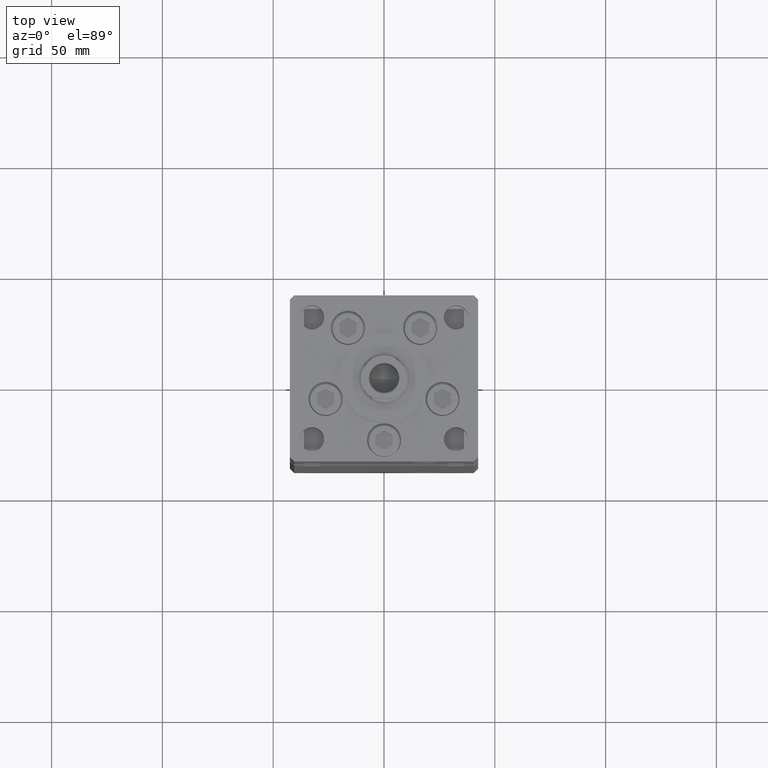
[diagram: clean part render]
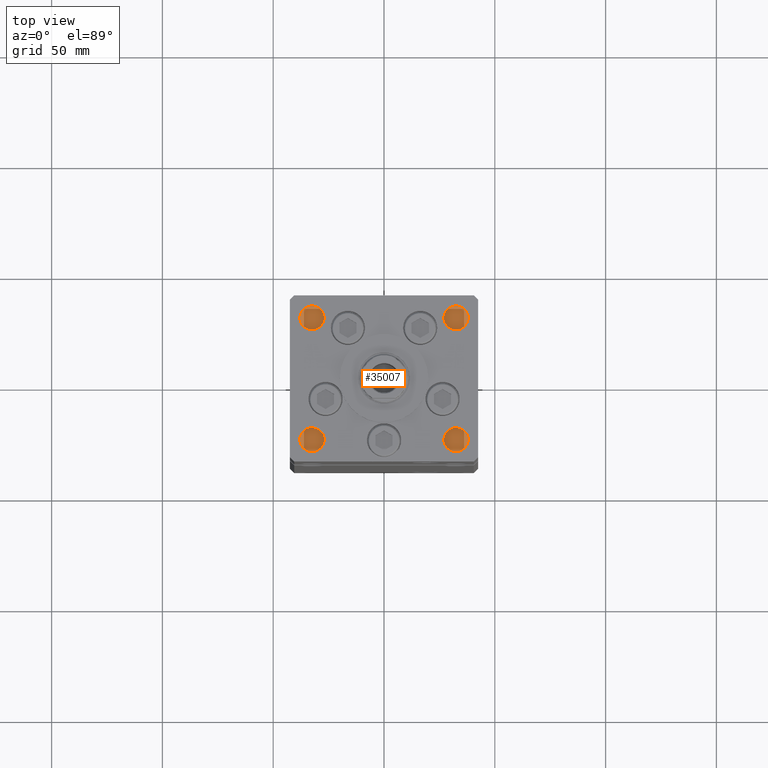
[diagram: same view with one face highlighted and labeled with its STEP entity id]
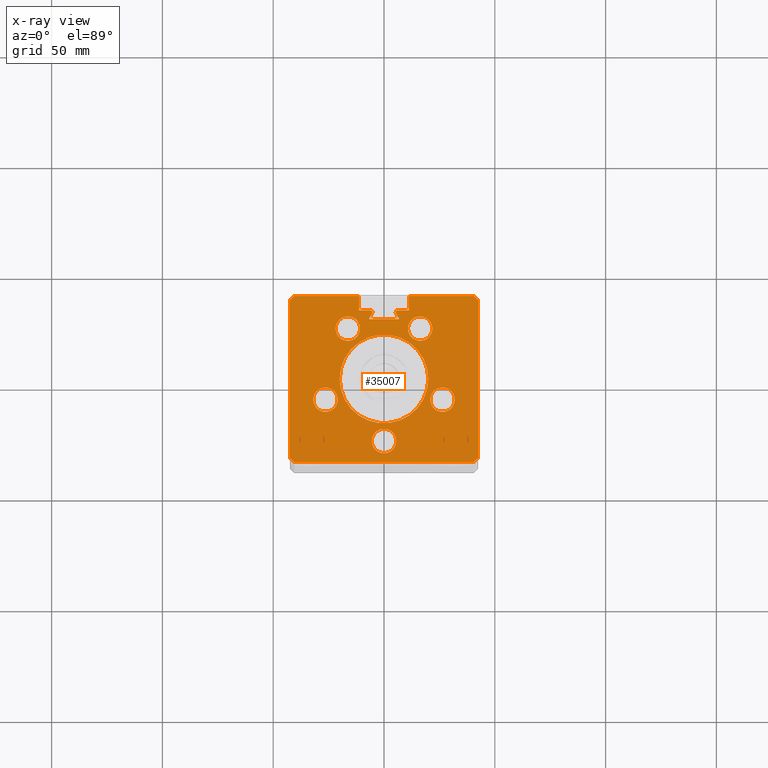
[diagram: x-ray of the same camera — body ghosted, the highlighted face saturated]
A machine part, top view. The second image highlights one B-rep face of the part: STEP entity #35007.
The next image is the same camera in x-ray: the body ghosted, the highlighted face saturated — about 0% of this face is hidden behind the body in this view.
In plain terms, the highlighted planar face has unit normal (0, 0, -1).
Its self-contained STEP definition (entity closure, byte-faithful):
#11 = VERTEX_POINT ( 'NONE', #52003 ) ;
#24 = ORIENTED_EDGE ( 'NONE', *, *, #44833, .F. ) ;
#211 = CARTESIAN_POINT ( 'NONE',  ( 0.000000000000000000, 31.00000000000000000, 268.5000000000000000 ) ) ;
#219 = VERTEX_POINT ( 'NONE', #23107 ) ;
#360 = VERTEX_POINT ( 'NONE', #35842 ) ;
#423 = AXIS2_PLACEMENT_3D ( 'NONE', #36058, #8341, #24205 ) ;
#670 = EDGE_CURVE ( 'NONE', #48857, #19321, #27626, .T. ) ;
#912 = CIRCLE ( 'NONE', #16365, 0.9333333333340008142 ) ;
#954 = VERTEX_POINT ( 'NONE', #27288 ) ;
#988 = CARTESIAN_POINT ( 'NONE',  ( -16.84845819336020867, 9.727461873366657130, 268.5000000000000000 ) ) ;
#1003 = AXIS2_PLACEMENT_3D ( 'NONE', #35841, #27487, #15388 ) ;
#2080 = ORIENTED_EDGE ( 'NONE', *, *, #19360, .F. ) ;
#2169 = CARTESIAN_POINT ( 'NONE',  ( 40.50000000000000711, 37.50000000000000000, 268.5000000000000000 ) ) ;
#2700 = DIRECTION ( 'NONE',  ( 0.000000000000000000, 0.000000000000000000, 1.000000000000000000 ) ) ;
#2738 = CARTESIAN_POINT ( 'NONE',  ( -11.24999999999999822, 37.50000000000000000, 268.5000000000000000 ) ) ;
#2826 = EDGE_LOOP ( 'NONE', ( #32112, #38444, #24, #29236, #51845, #38927, #4775, #24495, #21492, #50222, #29481, #31459, #50769, #3268, #25080, #28165, #51023, #46271, #44888 ) ) ;
#3024 = VERTEX_POINT ( 'NONE', #32644 ) ;
#3030 = CARTESIAN_POINT ( 'NONE',  ( -42.49999999999998579, -35.50000000000000711, 268.5000000000000000 ) ) ;
#3143 = ORIENTED_EDGE ( 'NONE', *, *, #50724, .F. ) ;
#3268 = ORIENTED_EDGE ( 'NONE', *, *, #40982, .F. ) ;
#3567 = AXIS2_PLACEMENT_3D ( 'NONE', #48556, #44241, #43709 ) ;
#3628 = EDGE_CURVE ( 'NONE', #32917, #23362, #25892, .T. ) ;
#4083 = CARTESIAN_POINT ( 'NONE',  ( 11.24999999999999112, 37.50000000000000000, 268.5000000000000000 ) ) ;
#4141 = DIRECTION ( 'NONE',  ( 0.4999999999999993894, -0.8660254037844390407, 0.000000000000000000 ) ) ;
#4756 = VERTEX_POINT ( 'NONE', #40346 ) ;
#4775 = ORIENTED_EDGE ( 'NONE', *, *, #10257, .T. ) ;
#5126 = DIRECTION ( 'NONE',  ( 0.000000000000000000, 0.000000000000000000, 1.000000000000000000 ) ) ;
#5132 = CARTESIAN_POINT ( 'NONE',  ( -42.50000000000001421, 35.50000000000000711, 268.5000000000000000 ) ) ;
#5204 = VERTEX_POINT ( 'NONE', #41601 ) ;
#5250 = VECTOR ( 'NONE', #7067, 1000.000000000000114 ) ;
#5476 = ORIENTED_EDGE ( 'NONE', *, *, #47572, .F. ) ;
#5698 = LINE ( 'NONE', #14286, #5935 ) ;
#5935 = VECTOR ( 'NONE', #14022, 1000.000000000000000 ) ;
#5988 = EDGE_CURVE ( 'NONE', #14555, #31026, #43330, .T. ) ;
#6146 = EDGE_CURVE ( 'NONE', #5204, #39005, #15895, .T. ) ;
#6228 = DIRECTION ( 'NONE',  ( 0.000000000000000000, 0.000000000000000000, 1.000000000000000000 ) ) ;
#6377 = CARTESIAN_POINT ( 'NONE',  ( -20.00000000000000000, 0.000000000000000000, 268.5000000000000000 ) ) ;
#7067 = DIRECTION ( 'NONE',  ( 0.7071067811865474617, -0.7071067811865474617, 0.000000000000000000 ) ) ;
#7272 = CARTESIAN_POINT ( 'NONE',  ( -6.183333333333997928, 30.06666666666599852, 268.5000000000000000 ) ) ;
#7332 = LINE ( 'NONE', #3030, #5250 ) ;
#7750 = EDGE_CURVE ( 'NONE', #12747, #48857, #27739, .T. ) ;
#8341 = DIRECTION ( 'NONE',  ( -0.000000000000000000, 0.000000000000000000, 1.000000000000000000 ) ) ;
#8493 = DIRECTION ( 'NONE',  ( 1.000000000000000000, 0.000000000000000000, 0.000000000000000000 ) ) ;
#8704 = AXIS2_PLACEMENT_3D ( 'NONE', #46280, #5126, #46016 ) ;
#8764 = DIRECTION ( 'NONE',  ( 0.000000000000000000, 0.000000000000000000, 1.000000000000000000 ) ) ;
#9206 = DIRECTION ( 'NONE',  ( -3.909236002201255146E-16, -1.000000000000000000, 0.000000000000000000 ) ) ;
#9543 = VERTEX_POINT ( 'NONE', #13922 ) ;
#9601 = EDGE_CURVE ( 'NONE', #31026, #14555, #12504, .T. ) ;
#9628 = DIRECTION ( 'NONE',  ( 1.000000000000000000, 0.000000000000000000, 0.000000000000000000 ) ) ;
#9887 = DIRECTION ( 'NONE',  ( 0.000000000000000000, 0.000000000000000000, 1.000000000000000000 ) ) ;
#9947 = FACE_BOUND ( 'NONE', #19476, .T. ) ;
#10257 = EDGE_CURVE ( 'NONE', #46793, #4756, #43857, .T. ) ;
#10308 = AXIS2_PLACEMENT_3D ( 'NONE', #36609, #12118, #27738 ) ;
#10386 = VERTEX_POINT ( 'NONE', #28991 ) ;
#11191 = CARTESIAN_POINT ( 'NONE',  ( 31.89865316429776954, -9.333333333333339255, 268.5000000000000000 ) ) ;
#12118 = DIRECTION ( 'NONE',  ( 0.000000000000000000, 0.000000000000000000, 1.000000000000000000 ) ) ;
#12504 = CIRCLE ( 'NONE', #31448, 5.499999999999998224 ) ;
#12652 = CARTESIAN_POINT ( 'NONE',  ( -11.24999999999999822, 37.50000000000000000, 268.5000000000000000 ) ) ;
#12747 = VERTEX_POINT ( 'NONE', #31046 ) ;
#12960 = VERTEX_POINT ( 'NONE', #52776 ) ;
#13151 = CARTESIAN_POINT ( 'NONE',  ( -11.24999999999999822, 31.00000000000000000, 268.5000000000000000 ) ) ;
#13429 = EDGE_CURVE ( 'NONE', #11, #17381, #50508, .T. ) ;
#13501 = CARTESIAN_POINT ( 'NONE',  ( 42.50000000000001421, 35.50000000000000711, 268.5000000000000000 ) ) ;
#13702 = EDGE_CURVE ( 'NONE', #38923, #360, #23716, .T. ) ;
#13705 = FACE_BOUND ( 'NONE', #28266, .T. ) ;
#13922 = CARTESIAN_POINT ( 'NONE',  ( 5.375042956467946276, 29.59999999999899600, 268.5000000000000000 ) ) ;
#14022 = DIRECTION ( 'NONE',  ( -0.000000000000000000, -1.000000000000000000, 0.000000000000000000 ) ) ;
#14200 = EDGE_CURVE ( 'NONE', #9543, #11, #44772, .T. ) ;
#14286 = CARTESIAN_POINT ( 'NONE',  ( 11.24999999999999822, 0.000000000000000000, 268.5000000000000000 ) ) ;
#14549 = LINE ( 'NONE', #2738, #15615 ) ;
#14555 = VERTEX_POINT ( 'NONE', #29595 ) ;
#15334 = EDGE_CURVE ( 'NONE', #26100, #10386, #21165, .T. ) ;
#15388 = DIRECTION ( 'NONE',  ( 1.000000000000000000, 0.000000000000000000, 0.000000000000000000 ) ) ;
#15615 = VECTOR ( 'NONE', #35273, 1000.000000000000000 ) ;
#15895 = CIRCLE ( 'NONE', #423, 20.00000000000000000 ) ;
#15937 = EDGE_LOOP ( 'NONE', ( #38521, #5476 ) ) ;
#15963 = VECTOR ( 'NONE', #49990, 1000.000000000000000 ) ;
#16017 = VERTEX_POINT ( 'NONE', #34043 ) ;
#16365 = AXIS2_PLACEMENT_3D ( 'NONE', #35795, #23411, #40092 ) ;
#16595 = DIRECTION ( 'NONE',  ( -1.000000000000000000, 0.000000000000000000, 0.000000000000000000 ) ) ;
#16823 = VECTOR ( 'NONE', #4141, 999.9999999999998863 ) ;
#16842 = ORIENTED_EDGE ( 'NONE', *, *, #13702, .F. ) ;
#17381 = VERTEX_POINT ( 'NONE', #52850 ) ;
#17438 = CIRCLE ( 'NONE', #46668, 0.9333333333340008142 ) ;
#17664 = CARTESIAN_POINT ( 'NONE',  ( 0.000000000000000000, 0.000000000000000000, 268.5000000000000000 ) ) ;
#17765 = EDGE_CURVE ( 'NONE', #219, #16017, #25027, .T. ) ;
#17807 = VERTEX_POINT ( 'NONE', #4083 ) ;
#17938 = ORIENTED_EDGE ( 'NONE', *, *, #39712, .F. ) ;
#18044 = VECTOR ( 'NONE', #26332, 1000.000000000000000 ) ;
#18128 = AXIS2_PLACEMENT_3D ( 'NONE', #31545, #47967, #27499 ) ;
#18139 = VERTEX_POINT ( 'NONE', #33834 ) ;
#18539 = EDGE_LOOP ( 'NONE', ( #53103, #2080 ) ) ;
#18540 = CARTESIAN_POINT ( 'NONE',  ( -11.24999999999999822, 37.50000000000000000, 268.5000000000000000 ) ) ;
#18604 = CARTESIAN_POINT ( 'NONE',  ( 0.000000000000000000, 31.00000000000000000, 268.5000000000000000 ) ) ;
#19236 = CARTESIAN_POINT ( 'NONE',  ( -5.249999999999996447, 30.06666666666599852, 268.5000000000000000 ) ) ;
#19321 = VERTEX_POINT ( 'NONE', #12652 ) ;
#19360 = EDGE_CURVE ( 'NONE', #28718, #44992, #28990, .T. ) ;
#19476 = EDGE_LOOP ( 'NONE', ( #40892, #47947 ) ) ;
#19917 = VERTEX_POINT ( 'NONE', #27870 ) ;
#20106 = AXIS2_PLACEMENT_3D ( 'NONE', #47917, #6228, #22617 ) ;
#20635 = ORIENTED_EDGE ( 'NONE', *, *, #5988, .F. ) ;
#21165 = CIRCLE ( 'NONE', #51265, 5.500000000000000000 ) ;
#21492 = ORIENTED_EDGE ( 'NONE', *, *, #33808, .F. ) ;
#22420 = CARTESIAN_POINT ( 'NONE',  ( -16.32291334290543361, 22.74999999999999645, 268.5000000000000000 ) ) ;
#22617 = DIRECTION ( 'NONE',  ( 1.000000000000000000, 0.000000000000000000, 0.000000000000000000 ) ) ;
#23107 = CARTESIAN_POINT ( 'NONE',  ( -42.50000000000001421, 35.50000000000000711, 268.5000000000000000 ) ) ;
#23194 = EDGE_CURVE ( 'NONE', #17807, #12960, #5698, .T. ) ;
#23362 = VERTEX_POINT ( 'NONE', #23942 ) ;
#23411 = DIRECTION ( 'NONE',  ( 0.000000000000000000, 0.000000000000000000, -1.000000000000000000 ) ) ;
#23651 = DIRECTION ( 'NONE',  ( 1.000000000000000000, 0.000000000000000000, 0.000000000000000000 ) ) ;
#23716 = CIRCLE ( 'NONE', #28848, 5.499999999999998224 ) ;
#23942 = CARTESIAN_POINT ( 'NONE',  ( -5.375042956467946276, 29.59999999999899600, 268.4999999999999432 ) ) ;
#24044 = CIRCLE ( 'NONE', #10308, 5.499999999999998224 ) ;
#24205 = DIRECTION ( 'NONE',  ( 1.000000000000000000, 0.000000000000000000, 0.000000000000000000 ) ) ;
#24268 = CARTESIAN_POINT ( 'NONE',  ( 42.49999999999998579, -35.50000000000000711, 268.5000000000000000 ) ) ;
#24463 = EDGE_LOOP ( 'NONE', ( #16842, #17938 ) ) ;
#24495 = ORIENTED_EDGE ( 'NONE', *, *, #24920, .F. ) ;
#24508 = DIRECTION ( 'NONE',  ( 0.000000000000000000, 0.000000000000000000, 1.000000000000000000 ) ) ;
#24696 = DIRECTION ( 'NONE',  ( 1.000000000000000000, 0.000000000000000000, 0.000000000000000000 ) ) ;
#24899 = DIRECTION ( 'NONE',  ( 0.4999999999999993894, 0.8660254037844390407, 0.000000000000000000 ) ) ;
#24920 = EDGE_CURVE ( 'NONE', #51093, #4756, #52019, .T. ) ;
#25027 = LINE ( 'NONE', #5132, #38415 ) ;
#25080 = ORIENTED_EDGE ( 'NONE', *, *, #14200, .T. ) ;
#25892 = CIRCLE ( 'NONE', #1003, 0.9333333333340008142 ) ;
#26100 = VERTEX_POINT ( 'NONE', #28044 ) ;
#26120 = LINE ( 'NONE', #13501, #39650 ) ;
#26332 = DIRECTION ( 'NONE',  ( 1.000000000000000000, 0.000000000000000000, 0.000000000000000000 ) ) ;
#26826 = EDGE_CURVE ( 'NONE', #12960, #18139, #41878, .T. ) ;
#26883 = DIRECTION ( 'NONE',  ( 1.000000000000000000, 0.000000000000000000, 0.000000000000000000 ) ) ;
#27288 = CARTESIAN_POINT ( 'NONE',  ( -5.499999999999998224, -28.00000000000000000, 268.5000000000000000 ) ) ;
#27362 = CARTESIAN_POINT ( 'NONE',  ( 5.500000000000001776, -28.00000000000000000, 268.5000000000000000 ) ) ;
#27487 = DIRECTION ( 'NONE',  ( 0.000000000000000000, 0.000000000000000000, -1.000000000000000000 ) ) ;
#27499 = DIRECTION ( 'NONE',  ( 1.000000000000000000, 0.000000000000000000, 0.000000000000000000 ) ) ;
#27626 = LINE ( 'NONE', #52128, #51586 ) ;
#27738 = DIRECTION ( 'NONE',  ( 1.000000000000000000, 0.000000000000000000, 0.000000000000000000 ) ) ;
#27739 = LINE ( 'NONE', #18604, #32251 ) ;
#27820 = CARTESIAN_POINT ( 'NONE',  ( -16.32291334290543361, 22.74999999999999645, 268.5000000000000000 ) ) ;
#27870 = CARTESIAN_POINT ( 'NONE',  ( 42.50000000000001421, 35.50000000000000711, 268.5000000000000000 ) ) ;
#28044 = CARTESIAN_POINT ( 'NONE',  ( -10.82291334290543539, 22.74999999999999645, 268.5000000000000000 ) ) ;
#28165 = ORIENTED_EDGE ( 'NONE', *, *, #13429, .T. ) ;
#28266 = EDGE_LOOP ( 'NONE', ( #3143, #52948 ) ) ;
#28718 = VERTEX_POINT ( 'NONE', #51695 ) ;
#28848 = AXIS2_PLACEMENT_3D ( 'NONE', #45342, #8764, #8493 ) ;
#28990 = CIRCLE ( 'NONE', #34144, 5.499999999999998224 ) ;
#28991 = CARTESIAN_POINT ( 'NONE',  ( -21.82291334290543361, 22.74999999999999645, 268.5000000000000000 ) ) ;
#29236 = ORIENTED_EDGE ( 'NONE', *, *, #36327, .T. ) ;
#29481 = ORIENTED_EDGE ( 'NONE', *, *, #49403, .F. ) ;
#29595 = CARTESIAN_POINT ( 'NONE',  ( 21.82291334290543361, 22.75000000000000000, 268.5000000000000000 ) ) ;
#30108 = DIRECTION ( 'NONE',  ( 0.000000000000000000, 0.000000000000000000, -1.000000000000000000 ) ) ;
#30259 = VECTOR ( 'NONE', #49118, 1000.000000000000114 ) ;
#30887 = VECTOR ( 'NONE', #40158, 1000.000000000000114 ) ;
#31026 = VERTEX_POINT ( 'NONE', #52385 ) ;
#31046 = CARTESIAN_POINT ( 'NONE',  ( -6.183333333333997928, 31.00000000000000000, 268.5000000000000000 ) ) ;
#31199 = DIRECTION ( 'NONE',  ( 0.7071067811865500152, -0.7071067811865451302, 0.000000000000000000 ) ) ;
#31448 = AXIS2_PLACEMENT_3D ( 'NONE', #46474, #9887, #9628 ) ;
#31459 = ORIENTED_EDGE ( 'NONE', *, *, #23194, .T. ) ;
#31521 = CARTESIAN_POINT ( 'NONE',  ( 42.49999999999998579, -35.50000000000000711, 268.5000000000000000 ) ) ;
#31545 = CARTESIAN_POINT ( 'NONE',  ( -26.39865316429776954, -9.333333333333342807, 268.5000000000000000 ) ) ;
#31814 = VECTOR ( 'NONE', #16595, 1000.000000000000000 ) ;
#31881 = CIRCLE ( 'NONE', #37914, 5.500000000000000000 ) ;
#32112 = ORIENTED_EDGE ( 'NONE', *, *, #7750, .T. ) ;
#32251 = VECTOR ( 'NONE', #48480, 1000.000000000000000 ) ;
#32644 = CARTESIAN_POINT ( 'NONE',  ( -40.50000000000000711, 37.50000000000000000, 268.5000000000000000 ) ) ;
#32724 = CIRCLE ( 'NONE', #8704, 5.500000000000000000 ) ;
#32917 = VERTEX_POINT ( 'NONE', #19236 ) ;
#32990 = CARTESIAN_POINT ( 'NONE',  ( -20.89865316429777309, -9.333333333333342807, 268.5000000000000000 ) ) ;
#33538 = EDGE_CURVE ( 'NONE', #10386, #26100, #31881, .T. ) ;
#33549 = CARTESIAN_POINT ( 'NONE',  ( 0.000000000000000000, 26.99999999999986855, 268.5000000000000000 ) ) ;
#33808 = EDGE_CURVE ( 'NONE', #19917, #51093, #26120, .T. ) ;
#33834 = CARTESIAN_POINT ( 'NONE',  ( 6.183333333333997928, 31.00000000000000000, 268.5000000000000000 ) ) ;
#34043 = CARTESIAN_POINT ( 'NONE',  ( -42.49999999999998579, -35.50000000000000711, 268.5000000000000000 ) ) ;
#34144 = AXIS2_PLACEMENT_3D ( 'NONE', #51926, #2700, #26883 ) ;
#34340 = DIRECTION ( 'NONE',  ( 1.000000000000000000, 0.000000000000000000, 0.000000000000000000 ) ) ;
#34414 = DIRECTION ( 'NONE',  ( -1.000000000000000000, 0.000000000000000000, -0.000000000000000000 ) ) ;
#34797 = DIRECTION ( 'NONE',  ( 1.000000000000000000, 0.000000000000000000, 0.000000000000000000 ) ) ;
#35007 = ADVANCED_FACE ( 'NONE', ( #38454, #46265, #39000, #38194, #9947, #37931, #13705 ), #42233, .F. ) ;
#35273 = DIRECTION ( 'NONE',  ( 1.000000000000000000, 0.000000000000000000, 0.000000000000000000 ) ) ;
#35795 = CARTESIAN_POINT ( 'NONE',  ( 6.183333333333997928, 30.06666666666599852, 268.5000000000000000 ) ) ;
#35841 = CARTESIAN_POINT ( 'NONE',  ( -6.183333333333997928, 30.06666666666599852, 268.5000000000000000 ) ) ;
#35842 = CARTESIAN_POINT ( 'NONE',  ( 20.89865316429777309, -9.333333333333339255, 268.5000000000000000 ) ) ;
#36058 = CARTESIAN_POINT ( 'NONE',  ( 0.000000000000000000, 0.000000000000000000, 268.5000000000000000 ) ) ;
#36277 = CIRCLE ( 'NONE', #42296, 20.00000000000000000 ) ;
#36327 = EDGE_CURVE ( 'NONE', #3024, #219, #36462, .T. ) ;
#36462 = LINE ( 'NONE', #48850, #30259 ) ;
#36609 = CARTESIAN_POINT ( 'NONE',  ( 26.39865316429776954, -9.333333333333339255, 268.5000000000000000 ) ) ;
#37006 = EDGE_LOOP ( 'NONE', ( #20635, #37415 ) ) ;
#37415 = ORIENTED_EDGE ( 'NONE', *, *, #9601, .F. ) ;
#37914 = AXIS2_PLACEMENT_3D ( 'NONE', #22420, #50961, #34797 ) ;
#37931 = FACE_OUTER_BOUND ( 'NONE', #2826, .T. ) ;
#38194 = FACE_BOUND ( 'NONE', #37006, .T. ) ;
#38383 = DIRECTION ( 'NONE',  ( -0.000000000000000000, 0.000000000000000000, 1.000000000000000000 ) ) ;
#38415 = VECTOR ( 'NONE', #50079, 1000.000000000000000 ) ;
#38444 = ORIENTED_EDGE ( 'NONE', *, *, #670, .T. ) ;
#38454 = FACE_BOUND ( 'NONE', #18539, .T. ) ;
#38521 = ORIENTED_EDGE ( 'NONE', *, *, #47214, .F. ) ;
#38923 = VERTEX_POINT ( 'NONE', #11191 ) ;
#38927 = ORIENTED_EDGE ( 'NONE', *, *, #47036, .T. ) ;
#38995 = LINE ( 'NONE', #18540, #18044 ) ;
#39000 = FACE_BOUND ( 'NONE', #24463, .T. ) ;
#39005 = VERTEX_POINT ( 'NONE', #6377 ) ;
#39520 = CARTESIAN_POINT ( 'NONE',  ( 40.50000000000000711, 37.50000000000000000, 268.5000000000000000 ) ) ;
#39650 = VECTOR ( 'NONE', #9206, 1000.000000000000000 ) ;
#39712 = EDGE_CURVE ( 'NONE', #360, #38923, #24044, .T. ) ;
#40092 = DIRECTION ( 'NONE',  ( 1.000000000000000000, 0.000000000000000000, 0.000000000000000000 ) ) ;
#40158 = DIRECTION ( 'NONE',  ( -0.7071067811865474617, -0.7071067811865474617, 0.000000000000000000 ) ) ;
#40346 = CARTESIAN_POINT ( 'NONE',  ( 40.49999999999998579, -37.50000000000000711, 268.5000000000000000 ) ) ;
#40461 = VERTEX_POINT ( 'NONE', #27362 ) ;
#40892 = ORIENTED_EDGE ( 'NONE', *, *, #15334, .F. ) ;
#40937 = DIRECTION ( 'NONE',  ( 1.000000000000000000, 0.000000000000000000, 0.000000000000000000 ) ) ;
#40982 = EDGE_CURVE ( 'NONE', #9543, #18139, #912, .T. ) ;
#41601 = CARTESIAN_POINT ( 'NONE',  ( 20.00000000000000000, 2.449293598294706513E-15, 268.5000000000000000 ) ) ;
#41878 = LINE ( 'NONE', #211, #31814 ) ;
#42233 = PLANE ( 'NONE',  #49989 ) ;
#42296 = AXIS2_PLACEMENT_3D ( 'NONE', #17664, #38383, #34340 ) ;
#43330 = CIRCLE ( 'NONE', #20106, 5.499999999999998224 ) ;
#43709 = DIRECTION ( 'NONE',  ( 1.000000000000000000, 0.000000000000000000, 0.000000000000000000 ) ) ;
#43857 = LINE ( 'NONE', #52197, #52075 ) ;
#43928 = CIRCLE ( 'NONE', #18128, 5.499999999999998224 ) ;
#44241 = DIRECTION ( 'NONE',  ( 0.000000000000000000, 0.000000000000000000, 1.000000000000000000 ) ) ;
#44772 = LINE ( 'NONE', #49079, #16823 ) ;
#44833 = EDGE_CURVE ( 'NONE', #3024, #19321, #38995, .T. ) ;
#44888 = ORIENTED_EDGE ( 'NONE', *, *, #52992, .F. ) ;
#44992 = VERTEX_POINT ( 'NONE', #32990 ) ;
#45000 = EDGE_CURVE ( 'NONE', #17381, #23362, #46167, .T. ) ;
#45342 = CARTESIAN_POINT ( 'NONE',  ( 26.39865316429776954, -9.333333333333339255, 268.5000000000000000 ) ) ;
#45823 = CARTESIAN_POINT ( 'NONE',  ( -40.49999999999998579, -37.50000000000000711, 268.5000000000000000 ) ) ;
#46016 = DIRECTION ( 'NONE',  ( 1.000000000000000000, 0.000000000000000000, 0.000000000000000000 ) ) ;
#46167 = LINE ( 'NONE', #988, #47297 ) ;
#46265 = FACE_BOUND ( 'NONE', #15937, .T. ) ;
#46271 = ORIENTED_EDGE ( 'NONE', *, *, #3628, .F. ) ;
#46280 = CARTESIAN_POINT ( 'NONE',  ( 1.714505518806294638E-15, -28.00000000000000000, 268.5000000000000000 ) ) ;
#46474 = CARTESIAN_POINT ( 'NONE',  ( 16.32291334290543361, 22.75000000000000000, 268.5000000000000000 ) ) ;
#46599 = VECTOR ( 'NONE', #31199, 1000.000000000000114 ) ;
#46668 = AXIS2_PLACEMENT_3D ( 'NONE', #7272, #53244, #24696 ) ;
#46793 = VERTEX_POINT ( 'NONE', #45823 ) ;
#47036 = EDGE_CURVE ( 'NONE', #16017, #46793, #7332, .T. ) ;
#47214 = EDGE_CURVE ( 'NONE', #40461, #954, #32724, .T. ) ;
#47297 = VECTOR ( 'NONE', #24899, 999.9999999999998863 ) ;
#47572 = EDGE_CURVE ( 'NONE', #954, #40461, #51693, .T. ) ;
#47917 = CARTESIAN_POINT ( 'NONE',  ( 16.32291334290543361, 22.75000000000000000, 268.5000000000000000 ) ) ;
#47947 = ORIENTED_EDGE ( 'NONE', *, *, #33538, .F. ) ;
#47967 = DIRECTION ( 'NONE',  ( 0.000000000000000000, 0.000000000000000000, 1.000000000000000000 ) ) ;
#48149 = LINE ( 'NONE', #2169, #46599 ) ;
#48480 = DIRECTION ( 'NONE',  ( -1.000000000000000000, 0.000000000000000000, 0.000000000000000000 ) ) ;
#48509 = EDGE_CURVE ( 'NONE', #44992, #28718, #43928, .T. ) ;
#48556 = CARTESIAN_POINT ( 'NONE',  ( 1.714505518806294638E-15, -28.00000000000000000, 268.5000000000000000 ) ) ;
#48623 = DIRECTION ( 'NONE',  ( 0.000000000000000000, 1.000000000000000000, 0.000000000000000000 ) ) ;
#48850 = CARTESIAN_POINT ( 'NONE',  ( -40.50000000000000711, 37.50000000000000000, 268.5000000000000000 ) ) ;
#48857 = VERTEX_POINT ( 'NONE', #13151 ) ;
#49079 = CARTESIAN_POINT ( 'NONE',  ( 16.84845819336020867, 9.727461873366657130, 268.5000000000000000 ) ) ;
#49118 = DIRECTION ( 'NONE',  ( -0.7071067811865500152, -0.7071067811865451302, 0.000000000000000000 ) ) ;
#49403 = EDGE_CURVE ( 'NONE', #17807, #50506, #14549, .T. ) ;
#49989 = AXIS2_PLACEMENT_3D ( 'NONE', #50573, #30108, #34414 ) ;
#49990 = DIRECTION ( 'NONE',  ( -1.000000000000000000, 0.000000000000000000, 0.000000000000000000 ) ) ;
#50079 = DIRECTION ( 'NONE',  ( 3.909236002201255146E-16, -1.000000000000000000, 0.000000000000000000 ) ) ;
#50222 = ORIENTED_EDGE ( 'NONE', *, *, #52126, .F. ) ;
#50506 = VERTEX_POINT ( 'NONE', #39520 ) ;
#50508 = LINE ( 'NONE', #33549, #15963 ) ;
#50573 = CARTESIAN_POINT ( 'NONE',  ( 0.000000000000000000, 0.000000000000000000, 268.5000000000000000 ) ) ;
#50724 = EDGE_CURVE ( 'NONE', #39005, #5204, #36277, .T. ) ;
#50769 = ORIENTED_EDGE ( 'NONE', *, *, #26826, .T. ) ;
#50961 = DIRECTION ( 'NONE',  ( 0.000000000000000000, 0.000000000000000000, 1.000000000000000000 ) ) ;
#51023 = ORIENTED_EDGE ( 'NONE', *, *, #45000, .T. ) ;
#51093 = VERTEX_POINT ( 'NONE', #31521 ) ;
#51265 = AXIS2_PLACEMENT_3D ( 'NONE', #27820, #24508, #40937 ) ;
#51586 = VECTOR ( 'NONE', #48623, 1000.000000000000000 ) ;
#51693 = CIRCLE ( 'NONE', #3567, 5.500000000000000000 ) ;
#51695 = CARTESIAN_POINT ( 'NONE',  ( -31.89865316429776954, -9.333333333333342807, 268.5000000000000000 ) ) ;
#51845 = ORIENTED_EDGE ( 'NONE', *, *, #17765, .T. ) ;
#51926 = CARTESIAN_POINT ( 'NONE',  ( -26.39865316429776954, -9.333333333333342807, 268.5000000000000000 ) ) ;
#52003 = CARTESIAN_POINT ( 'NONE',  ( 6.876153656360465938, 26.99999999999986855, 268.5000000000000000 ) ) ;
#52019 = LINE ( 'NONE', #24268, #30887 ) ;
#52075 = VECTOR ( 'NONE', #23651, 1000.000000000000000 ) ;
#52126 = EDGE_CURVE ( 'NONE', #50506, #19917, #48149, .T. ) ;
#52128 = CARTESIAN_POINT ( 'NONE',  ( -11.24999999999999822, 0.000000000000000000, 268.5000000000000000 ) ) ;
#52197 = CARTESIAN_POINT ( 'NONE',  ( -40.49999999999998579, -37.50000000000000711, 268.5000000000000000 ) ) ;
#52385 = CARTESIAN_POINT ( 'NONE',  ( 10.82291334290543894, 22.75000000000000000, 268.5000000000000000 ) ) ;
#52776 = CARTESIAN_POINT ( 'NONE',  ( 11.24999999999999822, 31.00000000000000000, 268.5000000000000000 ) ) ;
#52850 = CARTESIAN_POINT ( 'NONE',  ( -6.876153656360465938, 26.99999999999986855, 268.5000000000000000 ) ) ;
#52948 = ORIENTED_EDGE ( 'NONE', *, *, #6146, .F. ) ;
#52992 = EDGE_CURVE ( 'NONE', #12747, #32917, #17438, .T. ) ;
#53103 = ORIENTED_EDGE ( 'NONE', *, *, #48509, .F. ) ;
#53244 = DIRECTION ( 'NONE',  ( 0.000000000000000000, 0.000000000000000000, -1.000000000000000000 ) ) ;